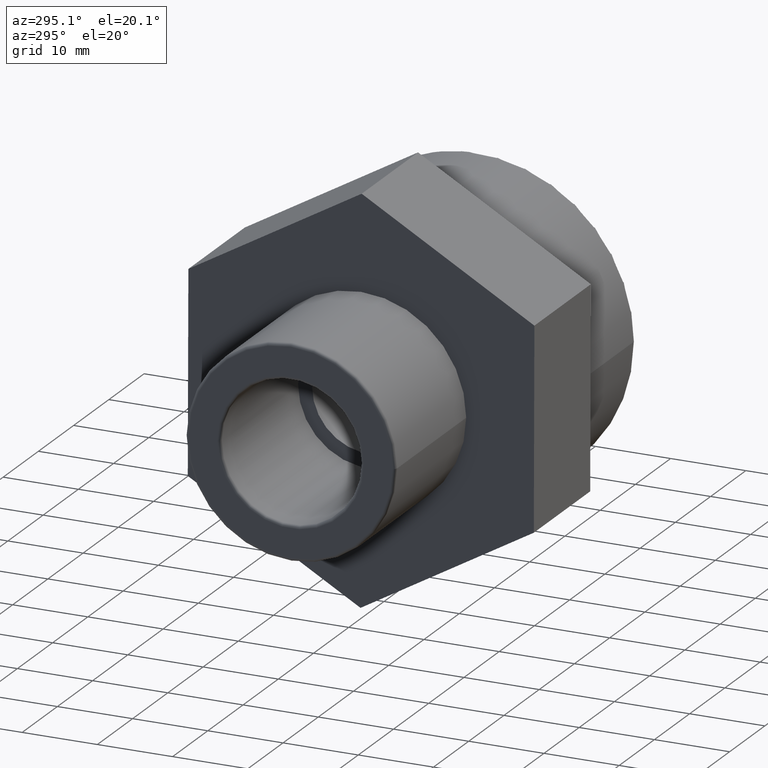
[diagram: clean part render]
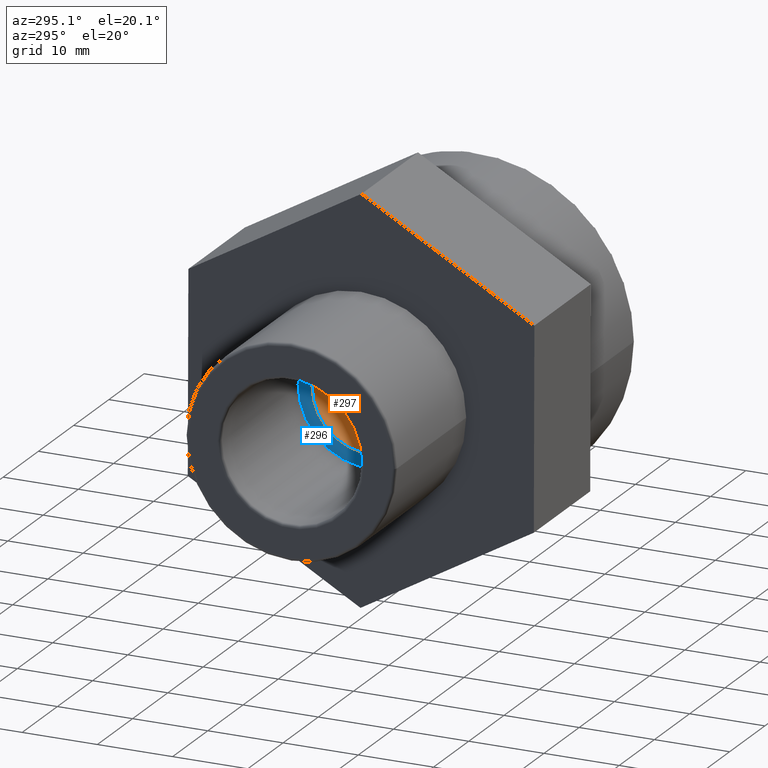
[diagram: same view with the hole feature highlighted: cylindrical wall and planar end face, labeled with their STEP entity ids]
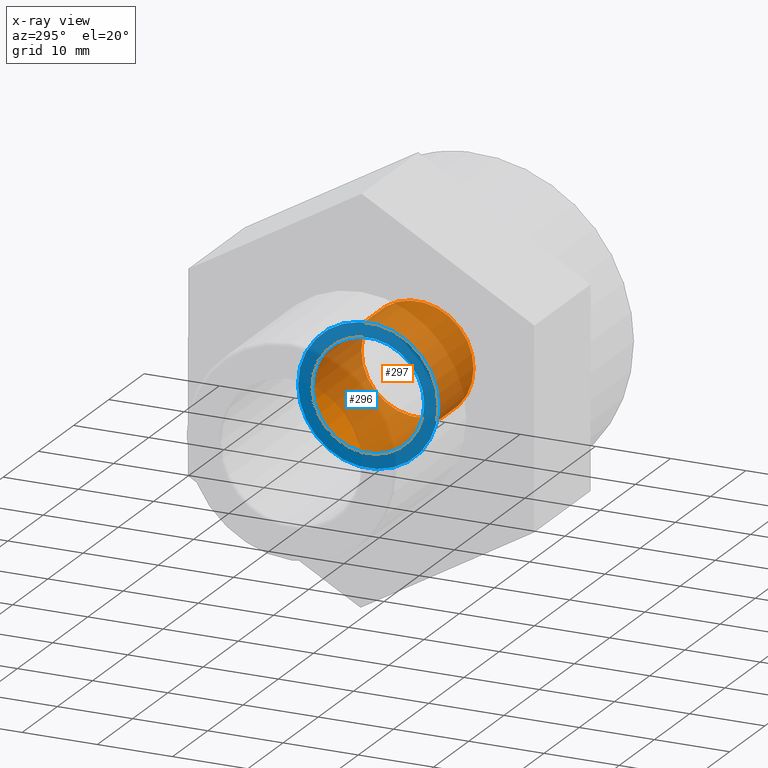
[diagram: x-ray of the same camera — body ghosted, the hole faces saturated]
A machine part, auxiliary view. The highlighted faces form one hole feature of diameter 14.9048 mm: the cylindrical wall (entity #297, orange) and its adjacent planar end face (entity #296, blue) — they share a circular edge in the B-rep.
The next image is the same camera in x-ray (body ghosted, the hole faces saturated) — the bore reads through the body.
Wall:
#55=CYLINDRICAL_SURFACE('',#333,7.45240000000001);
#79=FACE_BOUND('',#133,.T.);
#100=FACE_OUTER_BOUND('',#132,.T.);
#132=EDGE_LOOP('',(#258));
#133=EDGE_LOOP('',(#259));
#152=CIRCLE('',#332,7.45240000000001);
#153=CIRCLE('',#334,7.45240000000001);
#178=VERTEX_POINT('',#500);
#179=VERTEX_POINT('',#503);
#210=EDGE_CURVE('',#178,#178,#152,.T.);
#211=EDGE_CURVE('',#179,#179,#153,.T.);
#258=ORIENTED_EDGE('',*,*,#211,.F.);
#259=ORIENTED_EDGE('',*,*,#210,.T.);
#297=ADVANCED_FACE('',(#100,#79),#55,.F.);
#332=AXIS2_PLACEMENT_3D('',#501,#416,#417);
#333=AXIS2_PLACEMENT_3D('',#502,#418,#419);
#334=AXIS2_PLACEMENT_3D('',#504,#420,#421);
#416=DIRECTION('center_axis',(-1.,-1.83697019872103E-16,0.));
#417=DIRECTION('ref_axis',(0.,0.,1.));
#418=DIRECTION('center_axis',(-1.,-1.83697019872103E-16,0.));
#419=DIRECTION('ref_axis',(2.38360372416973E-16,-1.,0.));
#420=DIRECTION('center_axis',(-1.,-1.83697019872103E-16,0.));
#421=DIRECTION('ref_axis',(0.,0.,1.));
#500=CARTESIAN_POINT('',(-4.5,-7.4524,0.));
#501=CARTESIAN_POINT('Origin',(-4.5,4.04133443718627E-15,0.));
#502=CARTESIAN_POINT('Origin',(2.5,5.32721357629099E-15,0.));
#503=CARTESIAN_POINT('',(9.50000000000001,-7.4524,0.));
#504=CARTESIAN_POINT('Origin',(9.50000000000001,6.61309271539571E-15,0.));
End face:
#64=PLANE('',#331);
#78=FACE_BOUND('',#131,.T.);
#99=FACE_OUTER_BOUND('',#130,.T.);
#130=EDGE_LOOP('',(#256));
#131=EDGE_LOOP('',(#257));
#149=CIRCLE('',#320,9.31550000000001);
#152=CIRCLE('',#332,7.45240000000001);
#163=VERTEX_POINT('',#455);
#178=VERTEX_POINT('',#500);
#189=EDGE_CURVE('',#163,#163,#149,.T.);
#210=EDGE_CURVE('',#178,#178,#152,.T.);
#256=ORIENTED_EDGE('',*,*,#189,.T.);
#257=ORIENTED_EDGE('',*,*,#210,.F.);
#296=ADVANCED_FACE('',(#99,#78),#64,.T.);
#320=AXIS2_PLACEMENT_3D('',#456,#374,#375);
#331=AXIS2_PLACEMENT_3D('',#499,#414,#415);
#332=AXIS2_PLACEMENT_3D('',#501,#416,#417);
#374=DIRECTION('center_axis',(-1.,-1.83697019872103E-16,0.));
#375=DIRECTION('ref_axis',(0.,0.,1.));
#414=DIRECTION('center_axis',(-1.,-1.83697019872103E-16,0.));
#415=DIRECTION('ref_axis',(0.,0.,1.));
#416=DIRECTION('center_axis',(-1.,-1.83697019872103E-16,0.));
#417=DIRECTION('ref_axis',(0.,0.,1.));
#455=CARTESIAN_POINT('',(-4.5,-9.3155,0.));
#456=CARTESIAN_POINT('Origin',(-4.5,4.04133443718627E-15,0.));
#499=CARTESIAN_POINT('Origin',(-4.5,-7.4524,0.));
#500=CARTESIAN_POINT('',(-4.5,-7.4524,0.));
#501=CARTESIAN_POINT('Origin',(-4.5,4.04133443718627E-15,0.));